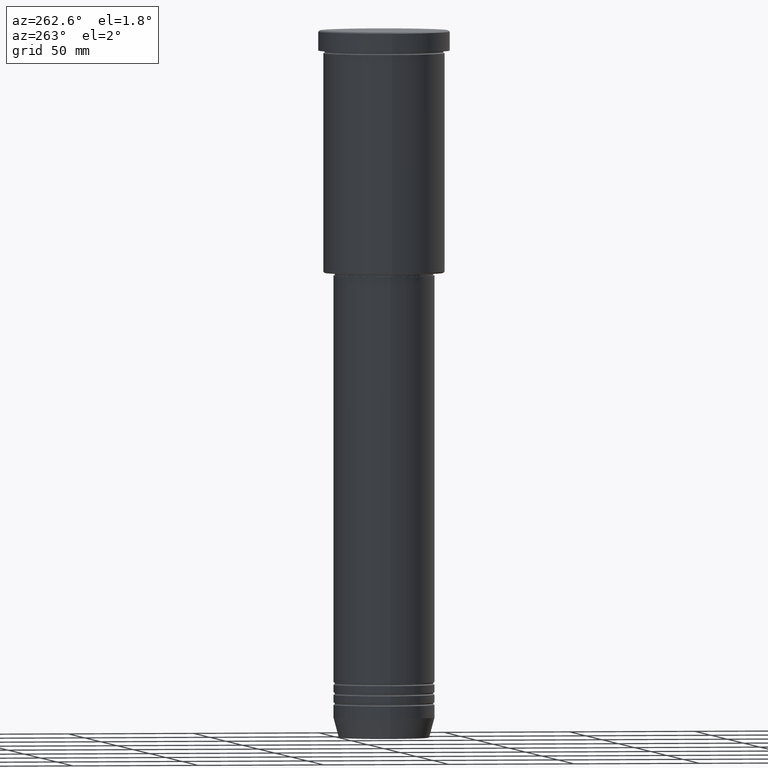
[diagram: clean part render]
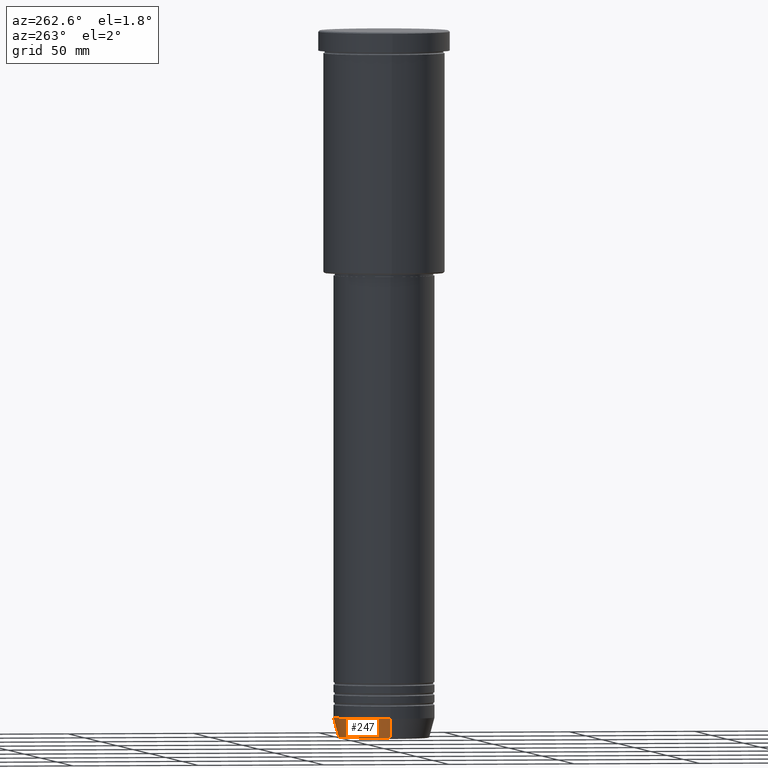
[diagram: same view with one face highlighted and labeled with its STEP entity id]
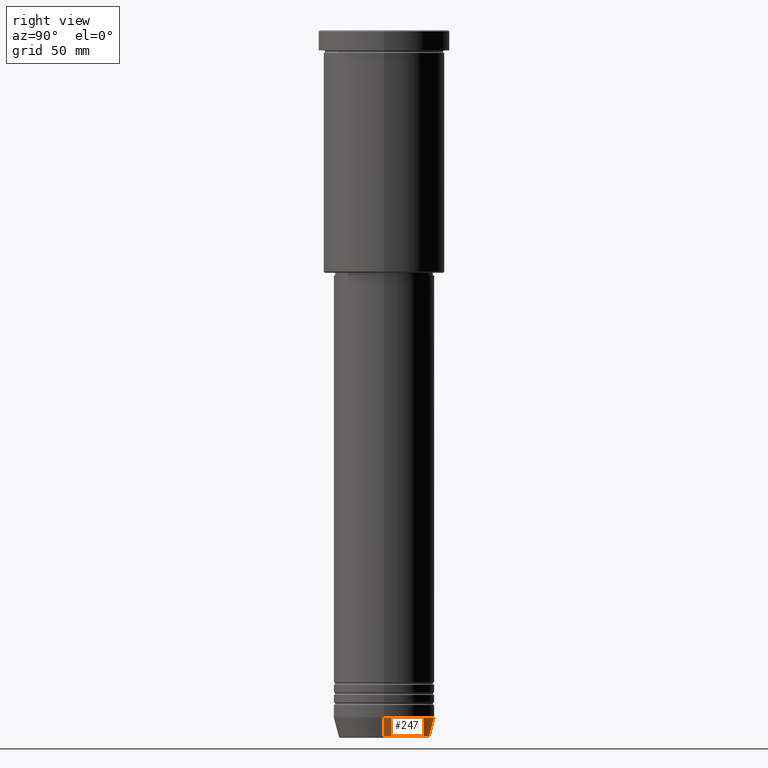
[diagram: same view with one face highlighted and labeled with its STEP entity id]
A machine part, auxiliary view. The second image highlights one B-rep face of the part: STEP entity #247.
A second angle (right view) of the same face is appended — the face is thin or edge-on in the first view.
In plain terms, the highlighted conical surface has half-angle 15 deg.
Its self-contained STEP definition (entity closure, byte-faithful):
#24 = CARTESIAN_POINT ( 'NONE',  ( 0.000000000000000000, 0.000000000000000000, -272.0000000000000000 ) ) ;
#34 = VERTEX_POINT ( 'NONE', #975 ) ;
#42 = DIRECTION ( 'NONE',  ( -0.000000000000000000, -0.000000000000000000, 1.000000000000000000 ) ) ;
#131 = DIRECTION ( 'NONE',  ( -0.000000000000000000, -0.000000000000000000, 1.000000000000000000 ) ) ;
#198 = DIRECTION ( 'NONE',  ( 1.000000000000000000, 0.000000000000000000, 0.000000000000000000 ) ) ;
#232 = VECTOR ( 'NONE', #1102, 1000.000000000000114 ) ;
#244 = ORIENTED_EDGE ( 'NONE', *, *, #1133, .T. ) ;
#247 = ADVANCED_FACE ( 'NONE', ( #943 ), #450, .T. ) ;
#284 = LINE ( 'NONE', #1050, #232 ) ;
#311 = VERTEX_POINT ( 'NONE', #1035 ) ;
#313 = CARTESIAN_POINT ( 'NONE',  ( 20.00000000000000355, 0.000000000000000000, -272.0000000000000000 ) ) ;
#319 = AXIS2_PLACEMENT_3D ( 'NONE', #24, #381, #198 ) ;
#381 = DIRECTION ( 'NONE',  ( -0.000000000000000000, -0.000000000000000000, 1.000000000000000000 ) ) ;
#450 = CONICAL_SURFACE ( 'NONE', #721, 20.00000000000000355, 0.2617993877991499629 ) ;
#475 = CARTESIAN_POINT ( 'NONE',  ( 20.00000000000000355, 0.000000000000000000, -272.0000000000000000 ) ) ;
#476 = DIRECTION ( 'NONE',  ( 1.000000000000000000, 0.000000000000000000, 0.000000000000000000 ) ) ;
#492 = DIRECTION ( 'NONE',  ( 0.2588190451025212391, 0.000000000000000000, 0.9659258262890680902 ) ) ;
#524 = ORIENTED_EDGE ( 'NONE', *, *, #899, .T. ) ;
#578 = VERTEX_POINT ( 'NONE', #1015 ) ;
#614 = DIRECTION ( 'NONE',  ( 1.000000000000000000, 0.000000000000000000, 0.000000000000000000 ) ) ;
#650 = EDGE_CURVE ( 'NONE', #578, #765, #749, .T. ) ;
#696 = CARTESIAN_POINT ( 'NONE',  ( 0.000000000000000000, 0.000000000000000000, -279.6294095225512706 ) ) ;
#707 = ORIENTED_EDGE ( 'NONE', *, *, #650, .F. ) ;
#721 = AXIS2_PLACEMENT_3D ( 'NONE', #772, #131, #476 ) ;
#749 = LINE ( 'NONE', #313, #779 ) ;
#755 = EDGE_CURVE ( 'NONE', #765, #311, #1177, .T. ) ;
#765 = VERTEX_POINT ( 'NONE', #475 ) ;
#772 = CARTESIAN_POINT ( 'NONE',  ( 0.000000000000000000, 0.000000000000000000, -272.0000000000000000 ) ) ;
#779 = VECTOR ( 'NONE', #492, 1000.000000000000114 ) ;
#832 = ORIENTED_EDGE ( 'NONE', *, *, #755, .F. ) ;
#836 = CIRCLE ( 'NONE', #1041, 17.95570587970608045 ) ;
#843 = EDGE_LOOP ( 'NONE', ( #524, #244, #832, #707 ) ) ;
#899 = EDGE_CURVE ( 'NONE', #578, #34, #836, .T. ) ;
#943 = FACE_OUTER_BOUND ( 'NONE', #843, .T. ) ;
#975 = CARTESIAN_POINT ( 'NONE',  ( -17.95570587970608045, 2.324116685748021371E-15, -279.6294095225512706 ) ) ;
#1015 = CARTESIAN_POINT ( 'NONE',  ( 17.95570587970608045, 0.000000000000000000, -279.6294095225512706 ) ) ;
#1035 = CARTESIAN_POINT ( 'NONE',  ( -20.00000000000000355, 2.449293598294706907E-15, -272.0000000000000000 ) ) ;
#1041 = AXIS2_PLACEMENT_3D ( 'NONE', #696, #42, #614 ) ;
#1050 = CARTESIAN_POINT ( 'NONE',  ( -20.00000000000000355, 2.449293598294706907E-15, -272.0000000000000000 ) ) ;
#1102 = DIRECTION ( 'NONE',  ( -0.2588190451025212391, 3.169619151431771721E-17, 0.9659258262890680902 ) ) ;
#1133 = EDGE_CURVE ( 'NONE', #34, #311, #284, .T. ) ;
#1177 = CIRCLE ( 'NONE', #319, 20.00000000000000355 ) ;